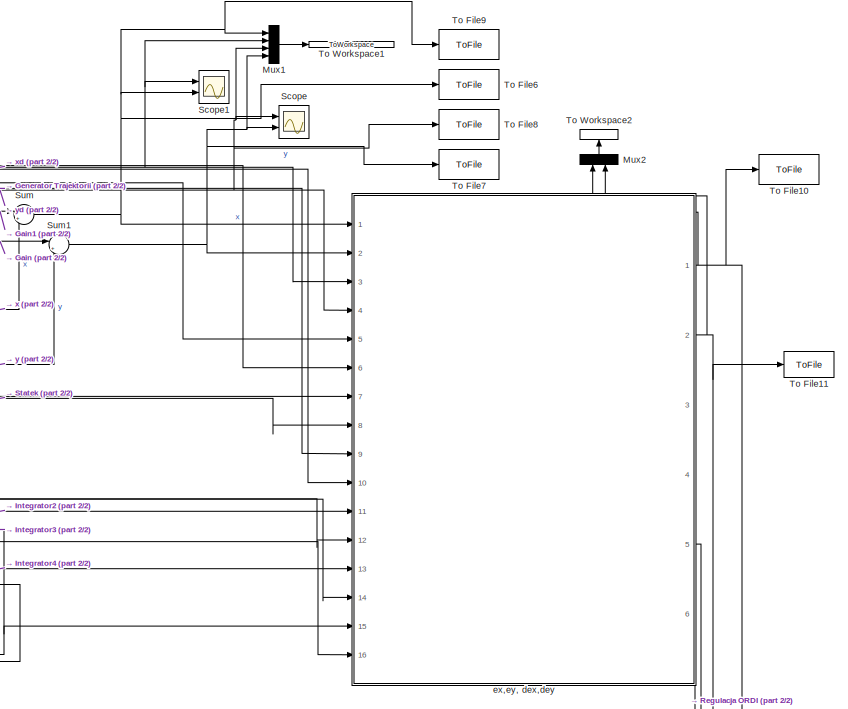
[diagram: root canvas - part 1/2, middle right region]
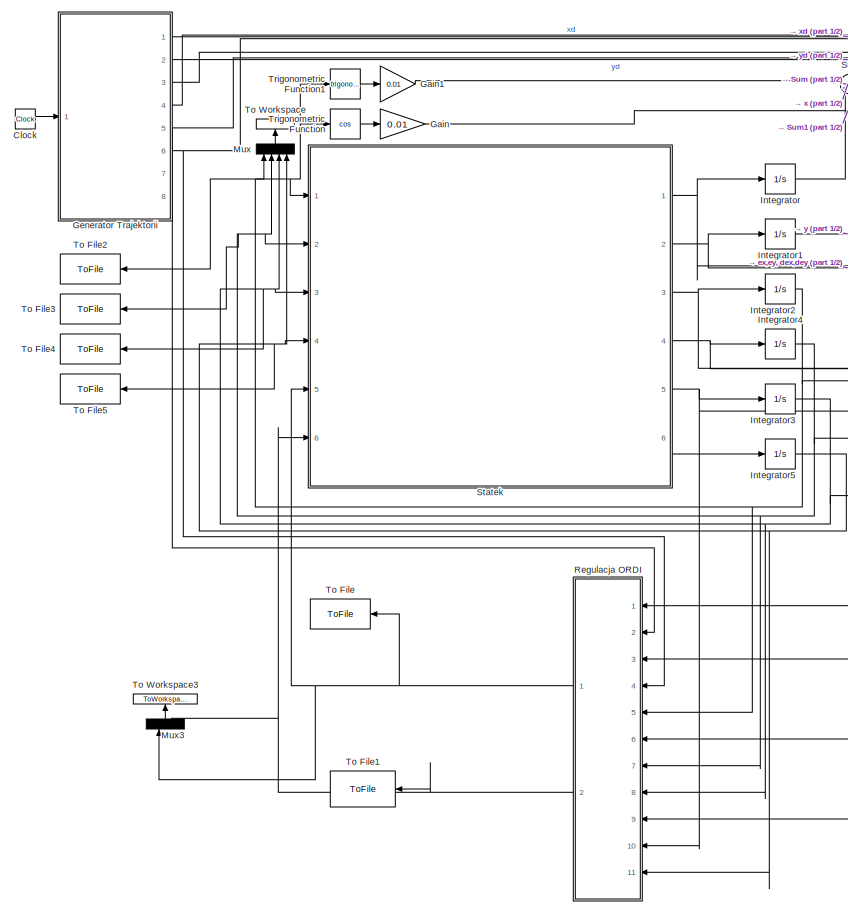
[diagram: root canvas - part 2/2, left side, full height]
MODEL slx_a27b52ab8bac
KIND model
CONFIG AbsTol = auto
CONFIG FixedStep = 0.001
CONFIG MaxStep = 0.01
CONFIG MinStep = .009
CONFIG RelTol = 1e-2
CONFIG SampleTimeConstraint = Unconstrained
CONFIG Solver = FixedStepAuto
CONFIG SolverMode = SingleTasking
CONFIG SolverName = FixedStepAuto
CONFIG StartTime = 0.0
CONFIG StopTime = 10
BLOCK [Clock] Clock
BLOCK [Gain] Gain
  Gain = 0.01
  OutDataTypeStr = Inherit: Inherit via internal rule
  ParamDataTypeStr = Inherit: Inherit via internal rule
  SaturateOnIntegerOverflow = off
BLOCK [Gain] Gain1
  Gain = 0.01
  OutDataTypeStr = Inherit: Inherit via internal rule
  ParamDataTypeStr = Inherit: Inherit via internal rule
  SaturateOnIntegerOverflow = off
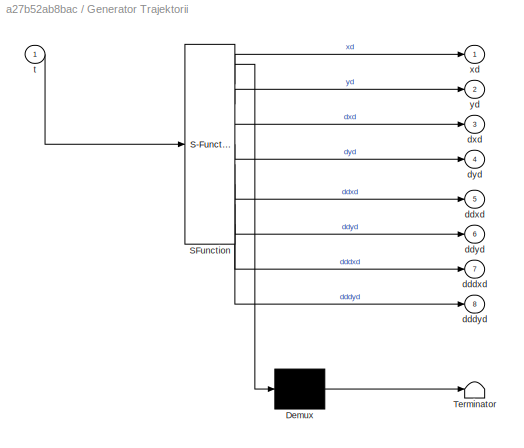
BLOCK [SubSystem] Generator Trajektorii
  ErrorFcn = Stateflow.Translate.translate
  PermitHierarchicalResolution = ExplicitOnly
  Ports = [1, 8]
  RequestExecContextInheritance = off
  SFBlockType = MATLAB Function
  TreatAsAtomicUnit = on
BLOCK [Demux] Generator Trajektorii/ Demux 
  Outputs = 1
  Ports = [1, 1]
BLOCK [S-Function] Generator Trajektorii/ SFunction 
  EnableBusSupport = on
  FunctionName = sf_sfun
  PortCounts = [1 9]
  Ports = [1, 9]
  SFunctionDeploymentMode = off
  Tag = Stateflow S-Function Sterowanie_StatkiemORDI_2015 1
BLOCK [Terminator] Generator Trajektorii/ Terminator 
BLOCK [Outport] Generator Trajektorii/dddxd
  IconDisplay = Port number
  Port = 7
BLOCK [Outport] Generator Trajektorii/dddyd
  IconDisplay = Port number
  Port = 8
BLOCK [Outport] Generator Trajektorii/ddxd
  IconDisplay = Port number
  Port = 5
BLOCK [Outport] Generator Trajektorii/ddyd
  IconDisplay = Port number
  Port = 6
BLOCK [Outport] Generator Trajektorii/dxd
  IconDisplay = Port number
  Port = 3
BLOCK [Outport] Generator Trajektorii/dyd
  IconDisplay = Port number
  Port = 4
BLOCK [Inport] Generator Trajektorii/t
  IconDisplay = Port number
BLOCK [Outport] Generator Trajektorii/xd
  IconDisplay = Port number
BLOCK [Outport] Generator Trajektorii/yd
  IconDisplay = Port number
  Port = 2
BLOCK [Integrator] Integrator
  InitialCondition = -0.01
  Ports = [1, 1]
BLOCK [Integrator] Integrator1
  InitialCondition = 1.01
  Ports = [1, 1]
BLOCK [Integrator] Integrator2
  InitialCondition = 0.01
  Ports = [1, 1]
BLOCK [Integrator] Integrator3
  InitialCondition = 0.1
  Ports = [1, 1]
BLOCK [Integrator] Integrator4
  InitialCondition = 0.1
  Ports = [1, 1]
BLOCK [Integrator] Integrator5
  InitialCondition = 0.1
  Ports = [1, 1]
BLOCK [Mux] Mux
  DisplayOption = bar
  Ports = [4, 1]
BLOCK [Mux] Mux1
  DisplayOption = bar
  Ports = [4, 1]
BLOCK [Mux] Mux2
  DisplayOption = bar
  Inputs = 2
  Ports = [2, 1]
BLOCK [Mux] Mux3
  DisplayOption = bar
  Inputs = 2
  Ports = [2, 1]
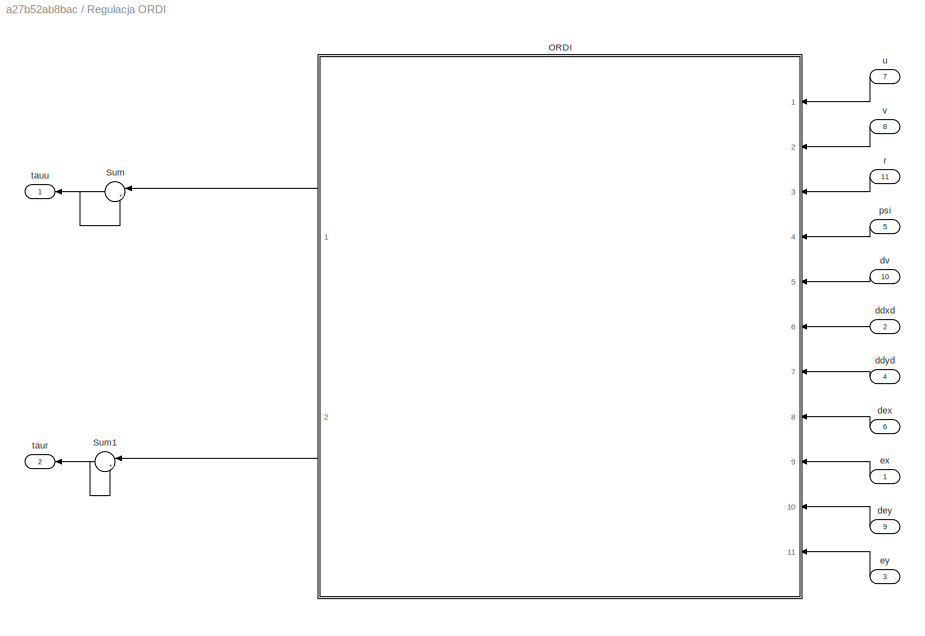
BLOCK [SubSystem] Regulacja ORDI
  Ports = [11, 2]
  RequestExecContextInheritance = off
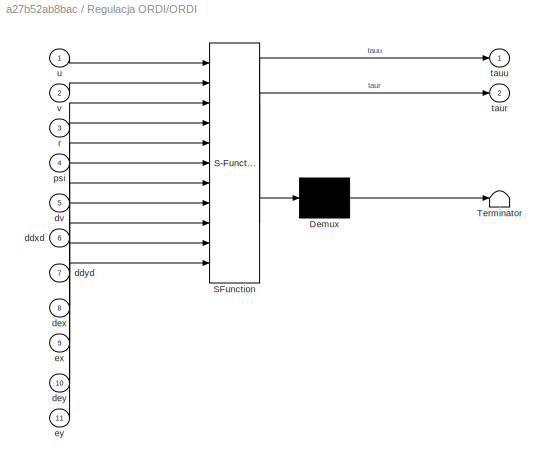
BLOCK [SubSystem] Regulacja ORDI/ORDI
  ErrorFcn = Stateflow.Translate.translate
  PermitHierarchicalResolution = ExplicitOnly
  Ports = [11, 2]
  RequestExecContextInheritance = off
  SFBlockType = MATLAB Function
  TreatAsAtomicUnit = on
BLOCK [Demux] Regulacja ORDI/ORDI/ Demux 
  Outputs = 1
  Ports = [1, 1]
BLOCK [S-Function] Regulacja ORDI/ORDI/ SFunction 
  EnableBusSupport = on
  FunctionName = sf_sfun
  PortCounts = [11 3]
  Ports = [11, 3]
  SFunctionDeploymentMode = off
  Tag = Stateflow S-Function Sterowanie_StatkiemORDI_2015 6
BLOCK [Terminator] Regulacja ORDI/ORDI/ Terminator 
BLOCK [Inport] Regulacja ORDI/ORDI/ddxd
  IconDisplay = Port number
  Port = 6
BLOCK [Inport] Regulacja ORDI/ORDI/ddyd
  IconDisplay = Port number
  Port = 7
BLOCK [Inport] Regulacja ORDI/ORDI/dex
  IconDisplay = Port number
  Port = 8
BLOCK [Inport] Regulacja ORDI/ORDI/dey
  IconDisplay = Port number
  Port = 10
BLOCK [Inport] Regulacja ORDI/ORDI/dv
  IconDisplay = Port number
  Port = 5
BLOCK [Inport] Regulacja ORDI/ORDI/ex
  IconDisplay = Port number
  Port = 9
BLOCK [Inport] Regulacja ORDI/ORDI/ey
  IconDisplay = Port number
  Port = 11
BLOCK [Inport] Regulacja ORDI/ORDI/psi
  IconDisplay = Port number
  Port = 4
BLOCK [Inport] Regulacja ORDI/ORDI/r
  IconDisplay = Port number
  Port = 3
BLOCK [Outport] Regulacja ORDI/ORDI/taur
  IconDisplay = Port number
  Port = 2
BLOCK [Outport] Regulacja ORDI/ORDI/tauu
  IconDisplay = Port number
BLOCK [Inport] Regulacja ORDI/ORDI/u
  IconDisplay = Port number
BLOCK [Inport] Regulacja ORDI/ORDI/v
  IconDisplay = Port number
  Port = 2
BLOCK [Sum] Regulacja ORDI/Sum
  IconShape = round
  InputSameDT = off
  Inputs = |+-
  OutDataTypeStr = Inherit: Inherit via internal rule
  Ports = [2, 1]
  SaturateOnIntegerOverflow = off
BLOCK [Sum] Regulacja ORDI/Sum1
  IconShape = round
  InputSameDT = off
  Inputs = |+-
  OutDataTypeStr = Inherit: Inherit via internal rule
  Ports = [2, 1]
  SaturateOnIntegerOverflow = off
BLOCK [Inport] Regulacja ORDI/ddxd
  IconDisplay = Port number
  Port = 2
BLOCK [Inport] Regulacja ORDI/ddyd
  IconDisplay = Port number
  Port = 4
BLOCK [Inport] Regulacja ORDI/dex
  IconDisplay = Port number
  Port = 6
BLOCK [Inport] Regulacja ORDI/dey
  IconDisplay = Port number
  Port = 9
BLOCK [Inport] Regulacja ORDI/dv
  IconDisplay = Port number
  Port = 10
BLOCK [Inport] Regulacja ORDI/ex
  IconDisplay = Port number
BLOCK [Inport] Regulacja ORDI/ey
  IconDisplay = Port number
  Port = 3
BLOCK [Inport] Regulacja ORDI/psi
  IconDisplay = Port number
  Port = 5
BLOCK [Inport] Regulacja ORDI/r
  IconDisplay = Port number
  Port = 11
BLOCK [Outport] Regulacja ORDI/taur
  IconDisplay = Port number
  Port = 2
BLOCK [Outport] Regulacja ORDI/tauu
  IconDisplay = Port number
BLOCK [Inport] Regulacja ORDI/u
  IconDisplay = Port number
  Port = 7
BLOCK [Inport] Regulacja ORDI/v
  IconDisplay = Port number
  Port = 8
BLOCK [Scope] Scope
  Floating = off
  NumInputPorts = 2
  Ports = [2]
  ScopeSpecificationString = Simulink.scopes.TimeScopeBlockCfg('CurrentConfiguration', extmgr.ConfigurationSet(extmgr.Configuration('Core','General UI',true),extmgr.Configuration('Core','Source UI',true),extmgr.Configuration('Sources','WiredSimulink',true),extmgr.Configuration('Visuals','Time Domain',true,'SerializedDisplays',{struct('MinYLimReal','-1.25342','MaxYLimReal','1.28074','YLabelReal','','MinYLimMag','0.00000','MaxY...<+1391ch>
BLOCK [Scope] Scope1
  Floating = off
  NumInputPorts = 2
  Ports = [2]
  ScopeSpecificationString = Simulink.scopes.TimeScopeBlockCfg('CurrentConfiguration', extmgr.ConfigurationSet(extmgr.Configuration('Core','General UI',true),extmgr.Configuration('Core','Source UI',true),extmgr.Configuration('Sources','WiredSimulink',true,'DataLoggingVariableName','ScopeData1'),extmgr.Configuration('Visuals','Time Domain',true,'SerializedDisplays',{struct('MinYLimReal','-1.25','MaxYLimReal','1.25','YLabelReal...<+1440ch>
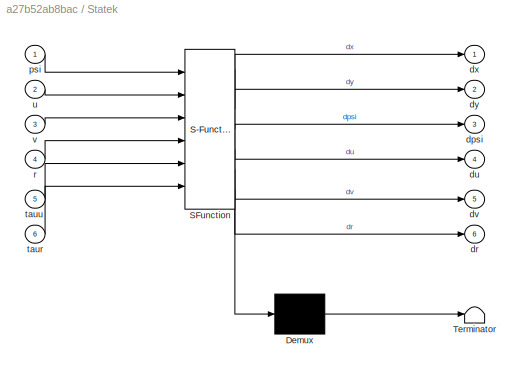
BLOCK [SubSystem] Statek
  ErrorFcn = Stateflow.Translate.translate
  PermitHierarchicalResolution = ExplicitOnly
  Ports = [6, 6]
  RequestExecContextInheritance = off
  SFBlockType = MATLAB Function
  TreatAsAtomicUnit = on
BLOCK [Demux] Statek/ Demux 
  Outputs = 1
  Ports = [1, 1]
BLOCK [S-Function] Statek/ SFunction 
  EnableBusSupport = on
  FunctionName = sf_sfun
  PortCounts = [6 7]
  Ports = [6, 7]
  SFunctionDeploymentMode = off
  Tag = Stateflow S-Function Sterowanie_StatkiemORDI_2015 2
BLOCK [Terminator] Statek/ Terminator 
BLOCK [Outport] Statek/dpsi
  IconDisplay = Port number
  Port = 3
BLOCK [Outport] Statek/dr
  IconDisplay = Port number
  Port = 6
BLOCK [Outport] Statek/du
  IconDisplay = Port number
  Port = 4
BLOCK [Outport] Statek/dv
  IconDisplay = Port number
  Port = 5
BLOCK [Outport] Statek/dx
  IconDisplay = Port number
BLOCK [Outport] Statek/dy
  IconDisplay = Port number
  Port = 2
BLOCK [Inport] Statek/psi
  IconDisplay = Port number
BLOCK [Inport] Statek/r
  IconDisplay = Port number
  Port = 4
BLOCK [Inport] Statek/taur
  IconDisplay = Port number
  Port = 6
BLOCK [Inport] Statek/tauu
  IconDisplay = Port number
  Port = 5
BLOCK [Inport] Statek/u
  IconDisplay = Port number
  Port = 2
BLOCK [Inport] Statek/v
  IconDisplay = Port number
  Port = 3
BLOCK [Sum] Sum
  IconShape = round
  InputSameDT = off
  Inputs = |++
  OutDataTypeStr = Inherit: Inherit via internal rule
  Ports = [2, 1]
  SaturateOnIntegerOverflow = off
BLOCK [Sum] Sum1
  IconShape = round
  InputSameDT = off
  Inputs = |++
  OutDataTypeStr = Inherit: Inherit via internal rule
  Ports = [2, 1]
  SaturateOnIntegerOverflow = off
BLOCK [ToFile] To File
  Filename = tauu.mat
  Ports = [1]
  SaveFormat = Timeseries
BLOCK [ToFile] To File1
  Filename = taur.mat
  Ports = [1]
  SaveFormat = Timeseries
BLOCK [ToFile] To File10
  Filename = ex.mat
  Ports = [1]
  SaveFormat = Timeseries
BLOCK [ToFile] To File11
  Filename = ey.mat
  Ports = [1]
  SaveFormat = Timeseries
BLOCK [ToFile] To File2
  Filename = psi.mat
  Ports = [1]
  SaveFormat = Timeseries
BLOCK [ToFile] To File3
  Filename = u.mat
  Ports = [1]
  SaveFormat = Timeseries
BLOCK [ToFile] To File4
  Filename = v.mat
  Ports = [1]
  SaveFormat = Timeseries
BLOCK [ToFile] To File5
  Filename = r.mat
  Ports = [1]
  SaveFormat = Timeseries
BLOCK [ToFile] To File6
  Filename = x.mat
  Ports = [1]
  SaveFormat = Timeseries
BLOCK [ToFile] To File7
  Filename = y.mat
  Ports = [1]
  SaveFormat = Timeseries
BLOCK [ToFile] To File8
  Filename = yd.mat
  Ports = [1]
  SaveFormat = Timeseries
BLOCK [ToFile] To File9
  Filename = xd.mat
  Ports = [1]
  SaveFormat = Timeseries
BLOCK [ToWorkspace] To Workspace
  FixptAsFi = on
  MaxDataPoints = inf
  Ports = [1]
  SampleTime = -1
  SaveFormat = Timeseries
  VariableName = statek
BLOCK [ToWorkspace] To Workspace1
  FixptAsFi = on
  MaxDataPoints = inf
  Ports = [1]
  SampleTime = -1
  SaveFormat = Timeseries
  VariableName = regulacja
BLOCK [ToWorkspace] To Workspace2
  FixptAsFi = on
  MaxDataPoints = inf
  Ports = [1]
  SampleTime = -1
  SaveFormat = Timeseries
  VariableName = uchyby
BLOCK [ToWorkspace] To Workspace3
  FixptAsFi = on
  MaxDataPoints = inf
  Ports = [1]
  SampleTime = -1
  SaveFormat = Timeseries
  VariableName = sterowanie
BLOCK [Trigonometry] Trigonometric Function
  Operator = cos
  Ports = [1, 1]
BLOCK [Trigonometry] Trigonometric Function1
  Ports = [1, 1]
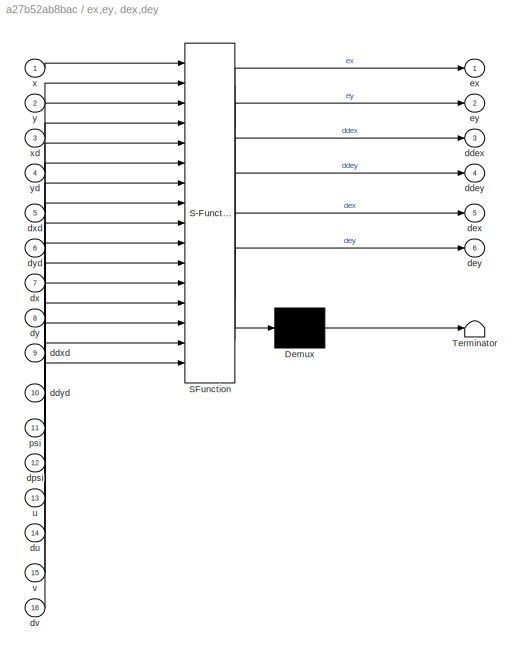
BLOCK [SubSystem] ex,ey, dex,dey
  ErrorFcn = Stateflow.Translate.translate
  PermitHierarchicalResolution = ExplicitOnly
  Ports = [16, 6]
  RequestExecContextInheritance = off
  SFBlockType = MATLAB Function
  TreatAsAtomicUnit = on
BLOCK [Demux] ex,ey, dex,dey/ Demux 
  Outputs = 1
  Ports = [1, 1]
BLOCK [S-Function] ex,ey, dex,dey/ SFunction 
  EnableBusSupport = on
  FunctionName = sf_sfun
  PortCounts = [16 7]
  Ports = [16, 7]
  SFunctionDeploymentMode = off
  Tag = Stateflow S-Function Sterowanie_StatkiemORDI_2015 3
BLOCK [Terminator] ex,ey, dex,dey/ Terminator 
BLOCK [Outport] ex,ey, dex,dey/ddex
  IconDisplay = Port number
  Port = 3
BLOCK [Outport] ex,ey, dex,dey/ddey
  IconDisplay = Port number
  Port = 4
BLOCK [Inport] ex,ey, dex,dey/ddxd
  IconDisplay = Port number
  Port = 9
BLOCK [Inport] ex,ey, dex,dey/ddyd
  IconDisplay = Port number
  Port = 10
BLOCK [Outport] ex,ey, dex,dey/dex
  IconDisplay = Port number
  Port = 5
BLOCK [Outport] ex,ey, dex,dey/dey
  IconDisplay = Port number
  Port = 6
BLOCK [Inport] ex,ey, dex,dey/dpsi
  IconDisplay = Port number
  Port = 12
BLOCK [Inport] ex,ey, dex,dey/du
  IconDisplay = Port number
  Port = 14
BLOCK [Inport] ex,ey, dex,dey/dv
  IconDisplay = Port number
  Port = 16
BLOCK [Inport] ex,ey, dex,dey/dx
  IconDisplay = Port number
  Port = 7
BLOCK [Inport] ex,ey, dex,dey/dxd
  IconDisplay = Port number
  Port = 5
BLOCK [Inport] ex,ey, dex,dey/dy
  IconDisplay = Port number
  Port = 8
BLOCK [Inport] ex,ey, dex,dey/dyd
  IconDisplay = Port number
  Port = 6
BLOCK [Outport] ex,ey, dex,dey/ex
  IconDisplay = Port number
BLOCK [Outport] ex,ey, dex,dey/ey
  IconDisplay = Port number
  Port = 2
BLOCK [Inport] ex,ey, dex,dey/psi
  IconDisplay = Port number
  Port = 11
BLOCK [Inport] ex,ey, dex,dey/u
  IconDisplay = Port number
  Port = 13
BLOCK [Inport] ex,ey, dex,dey/v
  IconDisplay = Port number
  Port = 15
BLOCK [Inport] ex,ey, dex,dey/x
  IconDisplay = Port number
BLOCK [Inport] ex,ey, dex,dey/xd
  IconDisplay = Port number
  Port = 3
BLOCK [Inport] ex,ey, dex,dey/y
  IconDisplay = Port number
  Port = 2
BLOCK [Inport] ex,ey, dex,dey/yd
  IconDisplay = Port number
  Port = 4
LINE Clock:1 -> Generator Trajektorii:1
LINE Gain1:1 -> Sum:1
LINE Gain:1 -> Sum1:1
NET Generator Trajektorii:1 -> Mux1:2, Scope1:1, ex,ey, dex,dey:3
NET Generator Trajektorii:2 -> Mux1:3, Scope:1, To File8:1, ex,ey, dex,dey:4
LINE Generator Trajektorii:3 -> ex,ey, dex,dey:5
LINE Generator Trajektorii:4 -> ex,ey, dex,dey:6
NET Generator Trajektorii:5 -> Regulacja ORDI:2, ex,ey, dex,dey:9
NET Generator Trajektorii:6 -> Regulacja ORDI:4, ex,ey, dex,dey:10
LINE Integrator1:1 -> Sum1:2
NET Integrator2:1 -> Mux:1, Regulacja ORDI:5, Statek:1, To File2:1, Trigonometric Function1:1, Trigonometric Function:1, ex,ey, dex,dey:11
NET Integrator3:1 -> Mux:3, Regulacja ORDI:8, Statek:3, To File4:1, ex,ey, dex,dey:15
NET Integrator4:1 -> Mux:2, Regulacja ORDI:7, Statek:2, To File3:1, ex,ey, dex,dey:13
NET Integrator5:1 -> Mux:4, Regulacja ORDI:11, Statek:4, To File5:1
LINE Integrator:1 -> Sum:2
LINE Mux1:1 -> To Workspace1:1
LINE Mux2:1 -> To Workspace2:1
LINE Mux3:1 -> To Workspace3:1
LINE Mux:1 -> To Workspace:1
LINE Regulacja ORDI/ORDI:1 -> Regulacja ORDI/Sum:1
LINE Regulacja ORDI/ORDI:2 -> Regulacja ORDI/Sum1:1
NET Regulacja ORDI/Sum1:1 -> Regulacja ORDI/Sum1:2, Regulacja ORDI/taur:1
NET Regulacja ORDI/Sum:1 -> Regulacja ORDI/Sum:2, Regulacja ORDI/tauu:1
LINE Regulacja ORDI/ddxd:1 -> Regulacja ORDI/ORDI:6
LINE Regulacja ORDI/ddyd:1 -> Regulacja ORDI/ORDI:7
LINE Regulacja ORDI/dex:1 -> Regulacja ORDI/ORDI:8
LINE Regulacja ORDI/dey:1 -> Regulacja ORDI/ORDI:10
LINE Regulacja ORDI/dv:1 -> Regulacja ORDI/ORDI:5
LINE Regulacja ORDI/ex:1 -> Regulacja ORDI/ORDI:9
LINE Regulacja ORDI/ey:1 -> Regulacja ORDI/ORDI:11
LINE Regulacja ORDI/psi:1 -> Regulacja ORDI/ORDI:4
LINE Regulacja ORDI/r:1 -> Regulacja ORDI/ORDI:3
LINE Regulacja ORDI/u:1 -> Regulacja ORDI/ORDI:1
LINE Regulacja ORDI/v:1 -> Regulacja ORDI/ORDI:2
NET Regulacja ORDI:1 -> Mux3:1, Statek:5, To File:1
NET Regulacja ORDI:2 -> Mux3:2, Statek:6, To File1:1
NET Statek:1 -> Integrator:1, ex,ey, dex,dey:7
NET Statek:2 -> Integrator1:1, ex,ey, dex,dey:8
NET Statek:3 -> Integrator2:1, ex,ey, dex,dey:12
NET Statek:4 -> Integrator4:1, ex,ey, dex,dey:14
NET Statek:5 -> Integrator3:1, Regulacja ORDI:10, ex,ey, dex,dey:16
LINE Statek:6 -> Integrator5:1
NET Sum1:1 -> Mux1:4, Scope:2, To File7:1, ex,ey, dex,dey:2
NET Sum:1 -> Mux1:1, Scope1:2, To File6:1, To File9:1, ex,ey, dex,dey:1
LINE Trigonometric Function1:1 -> Gain1:1
LINE Trigonometric Function:1 -> Gain:1
NET ex,ey, dex,dey:1 -> Mux2:1, Regulacja ORDI:1, To File10:1
NET ex,ey, dex,dey:2 -> Mux2:2, Regulacja ORDI:3, To File11:1
LINE ex,ey, dex,dey:5 -> Regulacja ORDI:6
LINE ex,ey, dex,dey:6 -> Regulacja ORDI:9
note: NET lines group one-source signal fan-out (src -> all destinations, sorted); 1:1 wires keep LINE
CHART Generator Trajektorii states=1 transitions=1
  STATE_LABEL 'eML_blk_kernel()'
  STATE_LABEL 'SCRIPT:\nfunction [xd,yd,dxd,dyd,ddxd,ddyd,dddxd,dddyd] = fcn(t)\n\nxd = sin(t);\nyd = cos(t);\ndxd=cos(t);\ndyd=-sin(t);\nddxd = -sin(t);\nddyd = -cos(t);\ndddxd = -cos(t);\ndddyd = sin(t);'
CHART Statek states=1 transitions=1
  STATE_LABEL 'eML_blk_kernel()'
  STATE_LABEL 'SCRIPT:\nfunction [dx,dy,dpsi,du,dv,dr] = fcn(psi,u,v,r,tauu,taur)\nm11=1.956;\nm22=2.405;\nm33=0.043;\nd11=2.436;\nd22=12.992;\nd33=0.0564;\ndx = u*cos(psi)-v*sin(psi);\ndy = u*sin(psi)+v*cos(psi);\ndpsi = r;\ndu = (m22*v*r-d11*u+tauu)/m11;\ndv = (-m11*u*r-d22*v)/m22;\ndr = ((m11-m22)*u*v-d33*r+taur)/m33;\n\n\n\n'
CHART ex,ey, dex,dey states=1 transitions=1
  STATE_LABEL 'eML_blk_kernel()'
  STATE_LABEL 'SCRIPT:\nfunction [ex,ey,ddex,ddey,dex,dey] = fcn(x,y,xd,yd,dxd,dyd,dx,dy,ddxd,ddyd,psi,dpsi,u,du,v,dv)\n\nex = x-xd;\ney = y-yd;\nm11=1.956;\ndex=dx-dxd;\ndey=dy-dyd;\nddex = du*cos(psi)-u*dpsi*sin(psi)-dv*sin(psi)-v*dpsi*cos(psi)-ddxd;\nddey = du*sin(psi)+u*dpsi*cos(psi)+dv*cos(psi)-v*dpsi*sin(psi)-ddyd;'
CHART Regulacja ORDI/ORDI states=1 transitions=1
  STATE_LABEL 'eML_blk_kernel()'
  STATE_LABEL 'SCRIPT:\nfunction [tauu,taur] = fcn(u,v,r,psi,dv,ddxd,ddyd,dex,ex,dey,ey)\nm11=1.956;\nm22=2.405;\nm33=0.043;\nd11=2.436;\nd22=12.992;\nd33=0.0564;\nk31=4;\nk32=4;\nk33=4;\nk34=4;\nl=0.01;\n\nfu = (m22*v*r-d11*u)/m11;\nfr = ((m11-m22)*u*v-d33*r)/m33;\nF = [fu*cos(psi)-u*r*sin(psi)-dv*sin(psi)-v*r*cos(psi)-ddxd;fu*sin(psi)+u*r*cos(psi)+dv*cos(psi)-v*r*sin(psi)-ddyd];\nF3 = F + [-l*fr*sin(psi) - l*r^2*cos(psi);l*fr*...<+185ch>'
